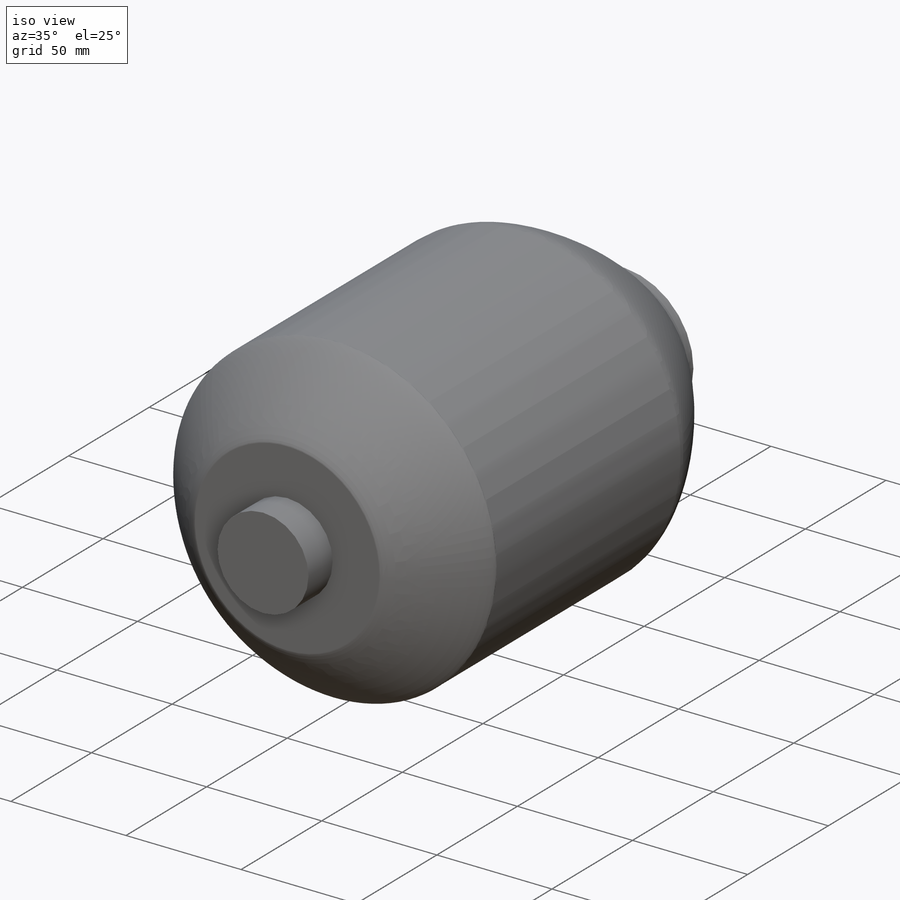
[diagram: iso view]
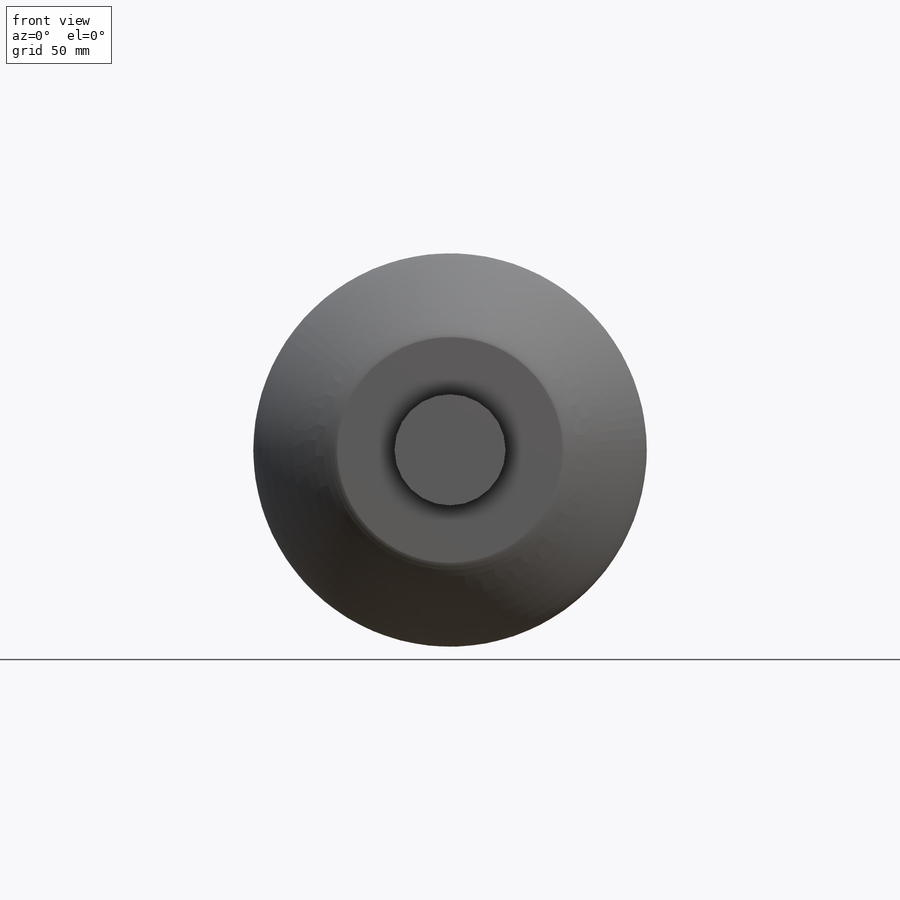
[diagram: front view]
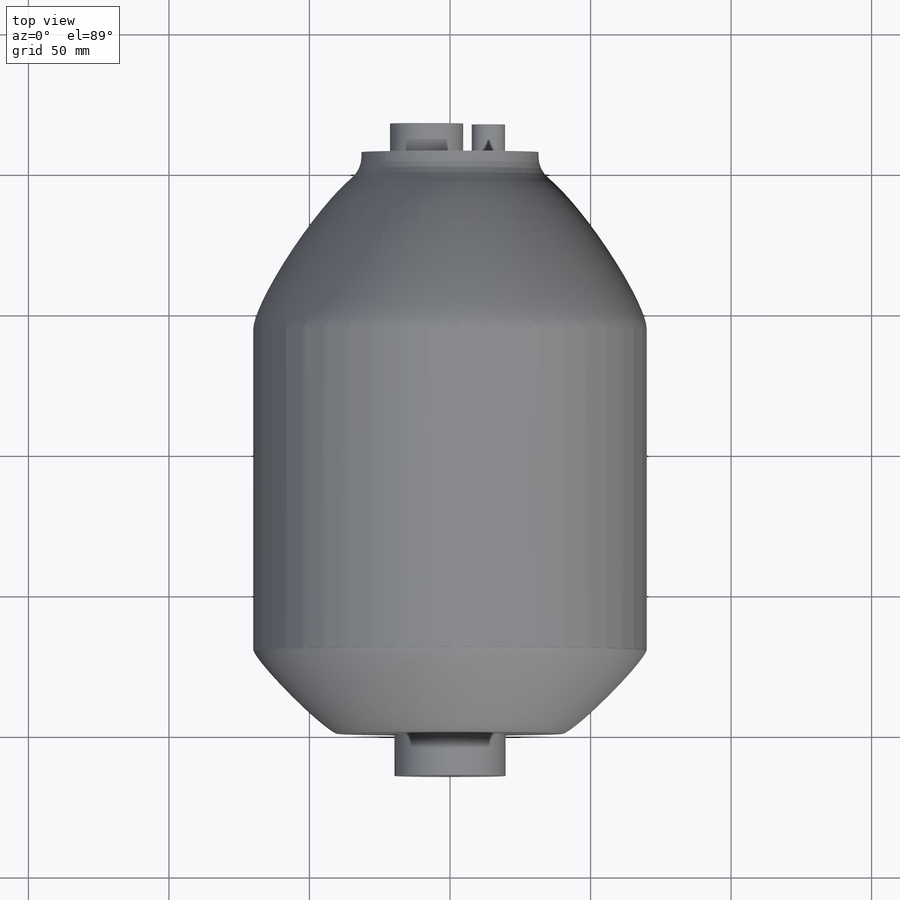
[diagram: top view]
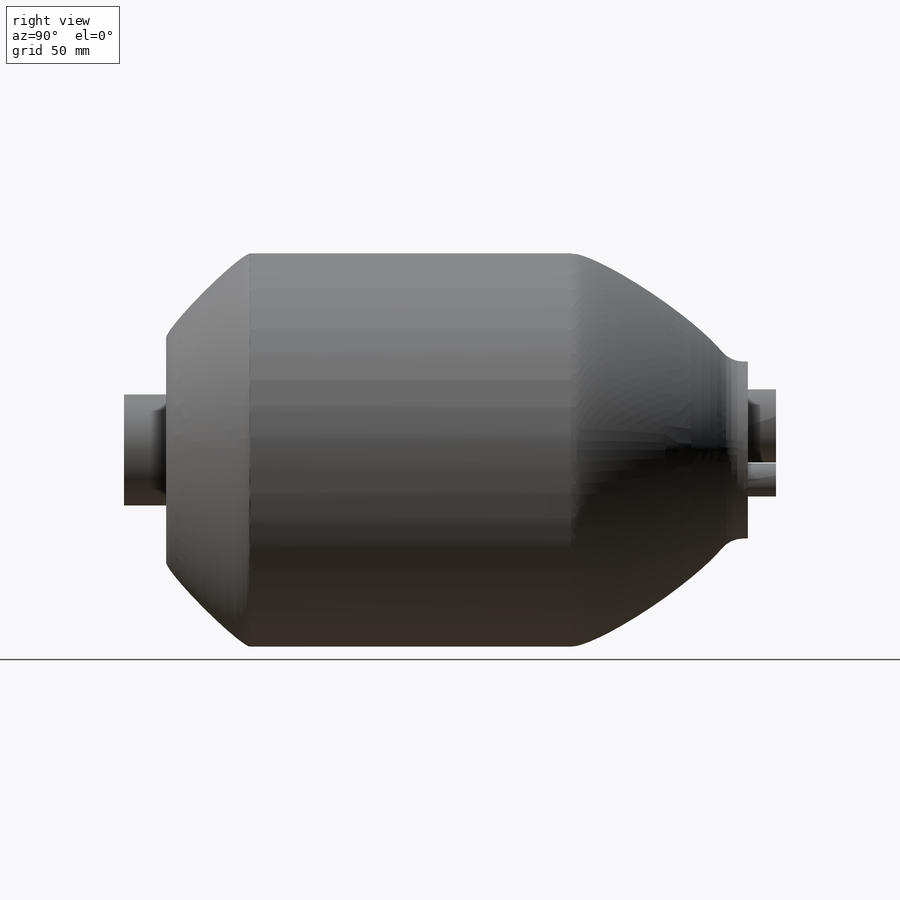
[diagram: right view]
SOLIDWORKS PART (.sldprt)
format: sldprt  version: not decoded by parser v0  size: 330,752 bytes
history: native  units: mm
features: sketch x4, extrude x4, fillet x3, material x1 (+13 scaffold rows collapsed)
feature tree (25):
  scaffold x13  (default folders/planes/origin — collapsed)
  material  "Material <not specified>"
  sketch  "Sketch3"  dims[D2=140.0mm D1=0.0mm]
  extrude  "Boss-Extrude1"  Depth=200mm
  sketch  "Sketch4"  dims[D1=39.5mm D2=0.0mm]
  extrude  "Boss-Extrude2"  Depth=15mm
  sketch  "Sketch5"  dims[c1.D1=~60.170294mm c1.D2=63.0mm c2.D1=0.0mm]
  extrude  "Boss-Extrude3"  Depth=7mm
  sketch  "Sketch6"
  extrude  "Boss-Extrude4"  Depth=10mm
  fillet  "Fillet2"  Radius=60mm
  fillet  "Fillet3"  Radius=30mm
  fillet  "Fillet5"  Radius=10mm
decode coverage: 10 of 11 modeling features carry decoded parameters
note: ~ marks probable driven/reference dimensions
note: suppression state not decoded; provenance and decode notes live in map.json
